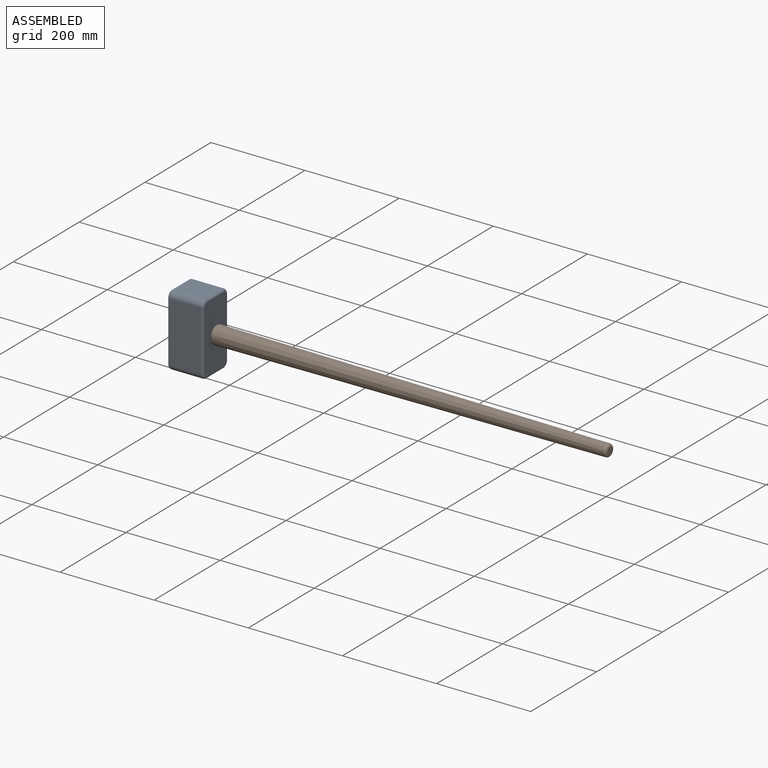
[diagram: assembled view]
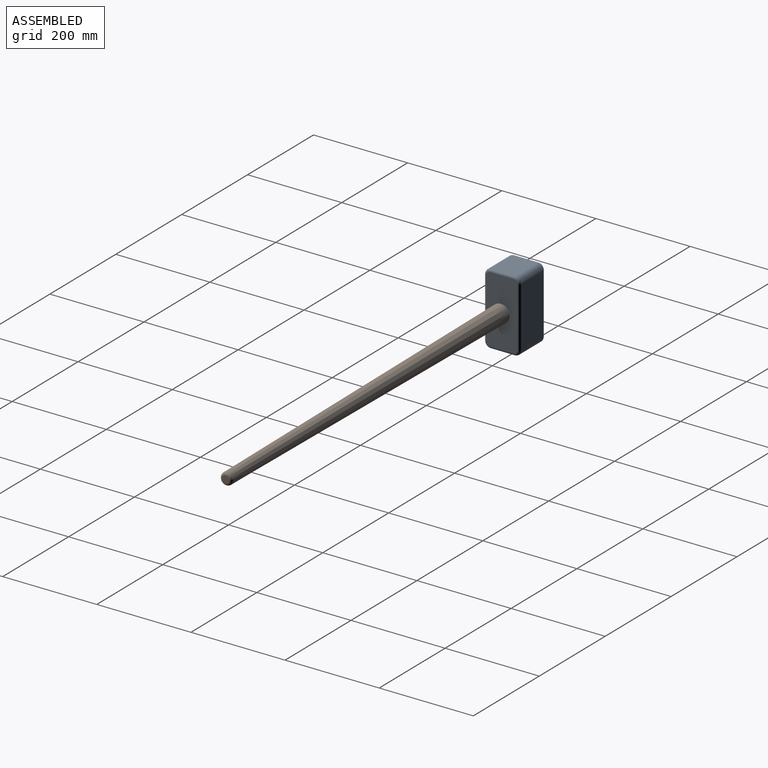
[diagram: assembled view, second angle]
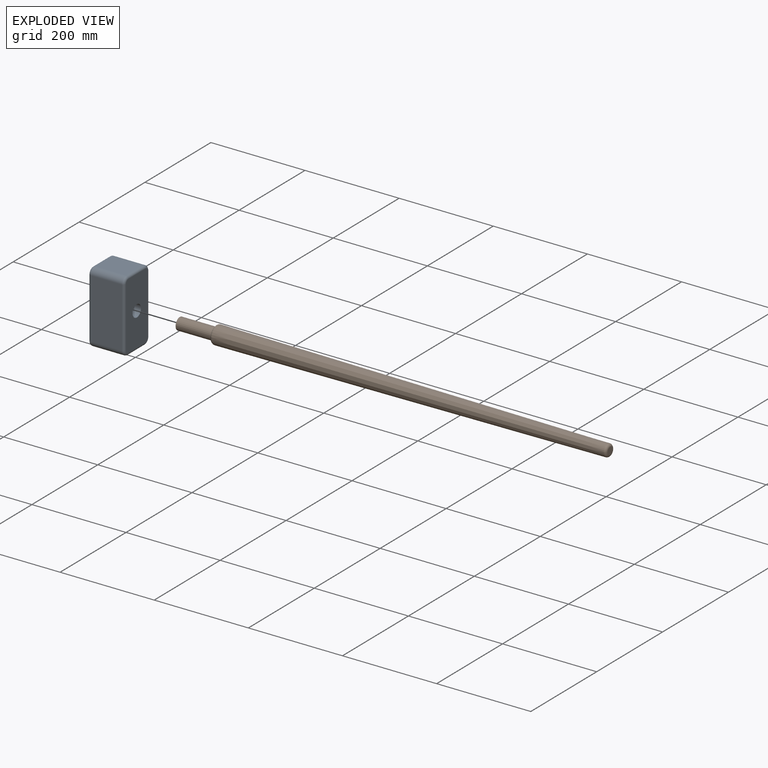
[diagram: exploded view]
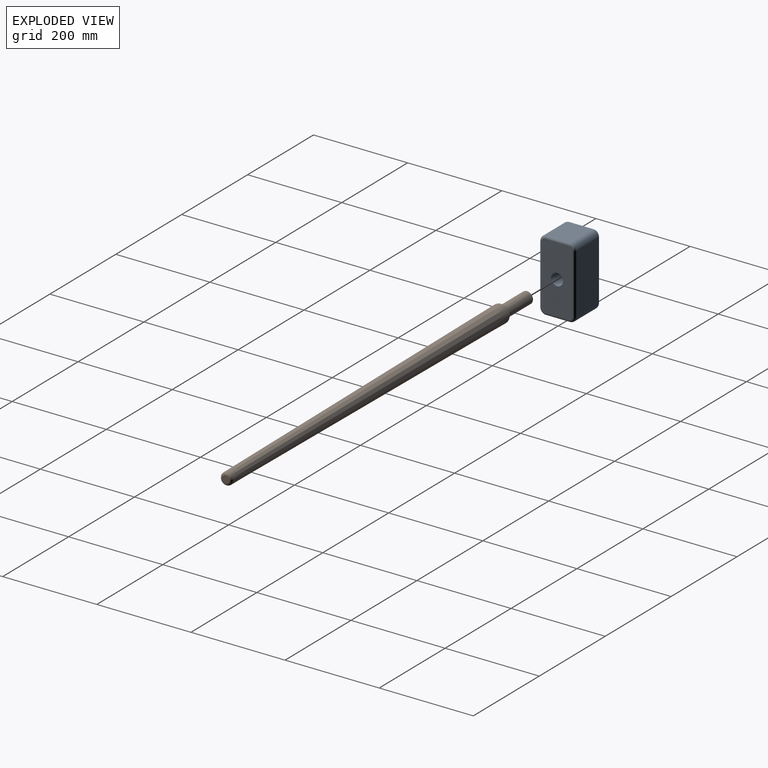
[diagram: exploded view, second angle]
ASSEMBLY  parts=2 mates=2
PART A: 27 faces, bbox 76.2x78.3x154.5 mm
  f0: plane 127x66.04mm, normal (0,1,0), area 8387.1mm2, adj f1,f8,f18,f26
  f1: cylinder r=12.7mm len=66.04mm, axis (-1,0,0), area 1317.4mm2, adj f0,f2,f16,f24
  f2: plane 66.04x50.8mm, normal (0,0,1), area 3354.8mm2, adj f1,f3,f14,f22
  f3: cylinder r=12.7mm len=66.04mm, axis (-1,0,0), area 1317.4mm2, adj f2,f4,f12,f20
  f4: plane 127x66.04mm, normal (0,-1,0), area 8387.1mm2, adj f3,f5,f11,f19
  f5: cylinder r=12.7mm len=66.04mm, axis (-1,0,0), area 1317.4mm2, adj f4,f6,f13,f21
  f6: plane 66.04x50.8mm, normal (0,0,-1), area 3354.8mm2, adj f5,f8,f15,f23
  f7: cylinder r=12.7mm len=76.2mm, axis (-1,0,0), area 6080.5mm2, adj f9,f10
  f8: cylinder r=12.7mm len=66.04mm, axis (-1,0,0), area 1317.4mm2, adj f0,f6,f17,f25
  f9: plane 142.24x66.04mm, normal (1,0,0), area 8837mm2, adj f7,f19,f20,f21,f22,f23,f24,f25
  f10: plane 142.24x66.04mm, normal (-1,0,0), area 8837mm2, adj f7,f11,f12,f13,f14,f15,f16,f17
  f11: cylinder r=5.08mm len=127mm, axis (0,0,-1), area 1013.4mm2, adj f4,f10,f12,f13
  f12: torus R=7.62mm, axis (1,0,0), area 136mm2, adj f3,f10,f11,f14
  f13: torus R=7.62mm, axis (1,0,0), area 136mm2, adj f5,f10,f11,f15
  f14: cylinder r=5.08mm len=50.8mm, axis (0,-1,0), area 405.4mm2, adj f2,f10,f12,f16
  f15: cylinder r=5.08mm len=50.8mm, axis (0,1,0), area 405.4mm2, adj f6,f10,f13,f17
  f16: torus R=7.62mm, axis (1,0,0), area 136mm2, adj f1,f10,f14,f18
  f17: torus R=7.62mm, axis (1,0,0), area 136mm2, adj f8,f10,f15,f18
  f18: cylinder r=5.08mm len=127mm, axis (0,0,1), area 1013.4mm2, adj f0,f10,f16,f17
  f19: cylinder r=5.08mm len=127mm, axis (0,0,1), area 1013.4mm2, adj f4,f9,f20,f21
  f20: torus R=7.62mm, axis (1,0,0), area 136mm2, adj f3,f9,f19,f22
  f21: torus R=7.62mm, axis (1,0,0), area 136mm2, adj f5,f9,f19,f23
  f22: cylinder r=5.08mm len=50.8mm, axis (0,1,0), area 405.4mm2, adj f2,f9,f20,f24
  f23: cylinder r=5.08mm len=50.8mm, axis (0,-1,0), area 405.4mm2, adj f6,f9,f21,f25
  f24: torus R=7.62mm, axis (1,0,0), area 136mm2, adj f1,f9,f22,f26
  f25: torus R=7.62mm, axis (1,0,0), area 136mm2, adj f8,f9,f23,f26
  f26: cylinder r=5.08mm len=127mm, axis (0,0,-1), area 1013.4mm2, adj f0,f9,f24,f25
PART B: 7 faces, bbox 914.4x41.2x41.2 mm
  f0: plane 25.4x25.4mm, normal (-1,0,0), area 506.7mm2, adj f1
  f1: cylinder r=12.7mm len=76.2mm, axis (-1,0,0), area 6080.5mm2, adj f0,f2
  f2: plane 27.86x27.86mm, normal (-1,0,0), area 103mm2, adj f1,f5
  f3: cone r=12.7mm half-angle=0.4deg, axis (-1,0,0), area 82594.2mm2, adj f5,f6
  f4: plane 15.32x15.32mm, normal (1,0,0), area 184.3mm2, adj f6
  f5: torus R=13.93mm, axis (1,0,0), area 865.2mm2, adj f2,f3
  f6: torus R=7.66mm, axis (-1,0,0), area 543mm2, adj f3,f4
PLACE A t=(94.23,-0.19,-74.29)mm
PLACE B t=(94.23,-0.19,-74.29)mm
MATE slider B.f1 <-> A.f7  axis (-1,0,0) through (94.23,-0.19,-74.29)mm
MATE planar B.f1 <-> A.f7  axis (-1,0,0) through (94.23,-0.19,-74.29)mm
